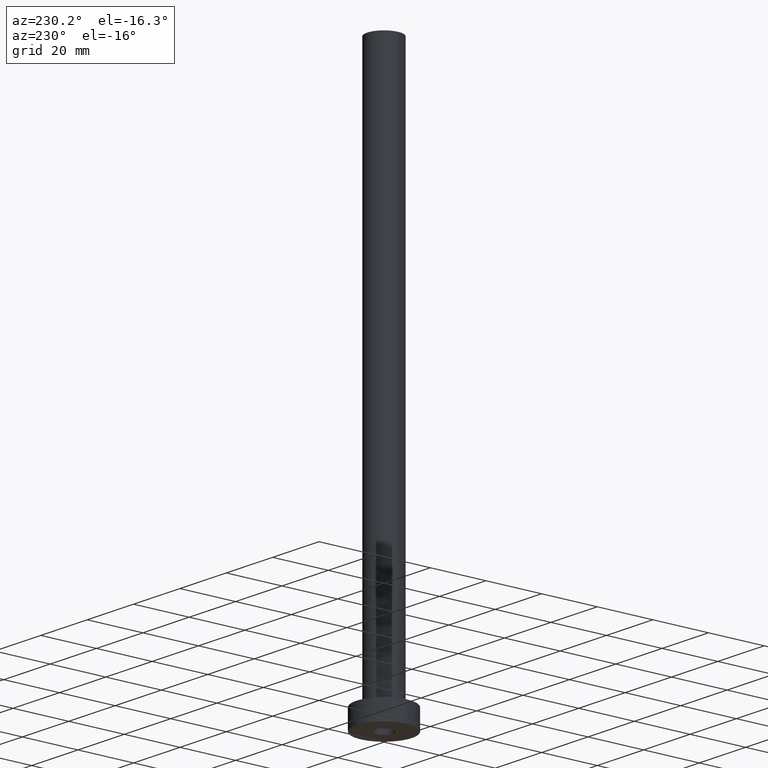
[diagram: clean part render]
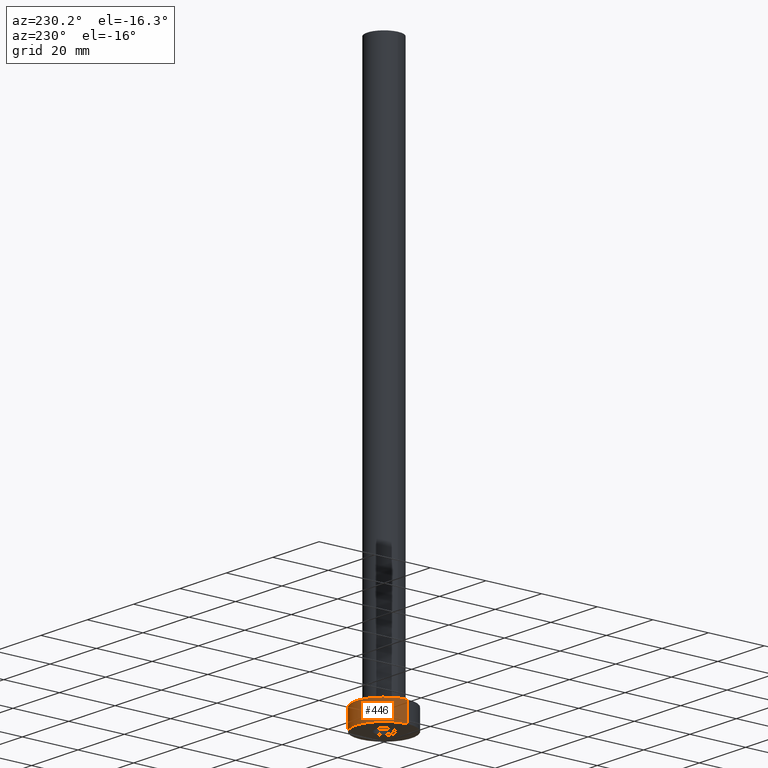
[diagram: same view with one face highlighted and labeled with its STEP entity id]
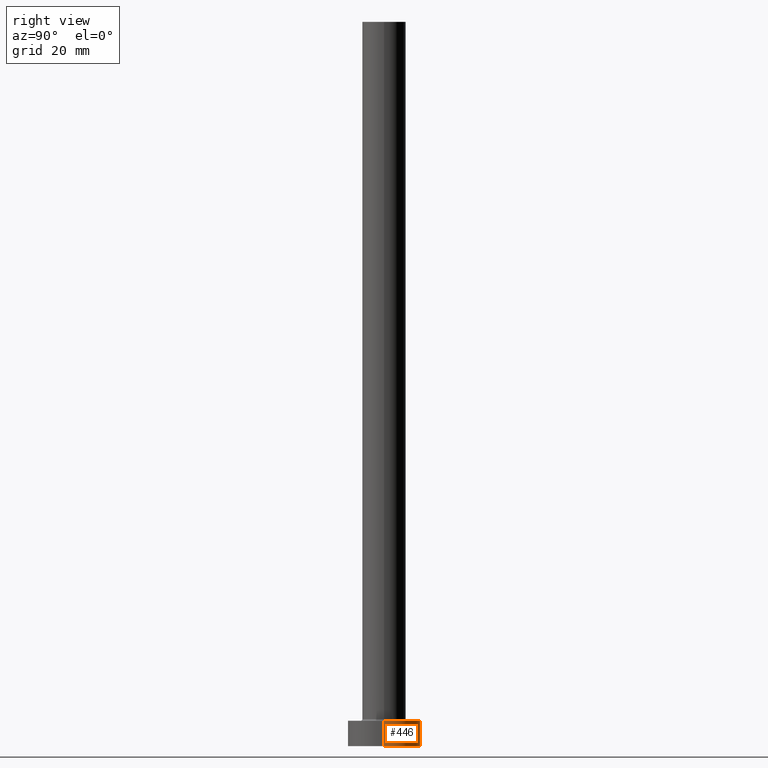
[diagram: same view with one face highlighted and labeled with its STEP entity id]
A machine part, auxiliary view. The second image highlights one B-rep face of the part: STEP entity #446.
A second angle (right view) of the same face is appended — the face is thin or edge-on in the first view.
In plain terms, the highlighted cylindrical surface (edge-blend (fillet) strip) has radius 10 mm, axis along (-0, -0, -1).
Its self-contained STEP definition (entity closure, byte-faithful):
#13 = VERTEX_POINT ( 'NONE', #458 ) ;
#17 = CARTESIAN_POINT ( 'NONE',  ( -10.00000000000000000, 0.000000000000000000, 7.000000000000000000 ) ) ;
#43 = CYLINDRICAL_SURFACE ( 'NONE', #389, 10.00000000000000000 ) ;
#50 = VECTOR ( 'NONE', #369, 1000.000000000000000 ) ;
#82 = DIRECTION ( 'NONE',  ( 1.000000000000000000, 0.000000000000000000, 0.000000000000000000 ) ) ;
#91 = VERTEX_POINT ( 'NONE', #17 ) ;
#97 = VERTEX_POINT ( 'NONE', #441 ) ;
#101 = CIRCLE ( 'NONE', #273, 10.00000000000000000 ) ;
#106 = DIRECTION ( 'NONE',  ( 0.000000000000000000, 0.000000000000000000, 1.000000000000000000 ) ) ;
#108 = FACE_OUTER_BOUND ( 'NONE', #298, .T. ) ;
#118 = CARTESIAN_POINT ( 'NONE',  ( 0.000000000000000000, 0.000000000000000000, 7.000000000000000000 ) ) ;
#120 = CARTESIAN_POINT ( 'NONE',  ( -10.00000000000000000, 0.000000000000000000, 0.000000000000000000 ) ) ;
#125 = ORIENTED_EDGE ( 'NONE', *, *, #311, .F. ) ;
#136 = LINE ( 'NONE', #165, #50 ) ;
#143 = EDGE_CURVE ( 'NONE', #13, #387, #461, .T. ) ;
#162 = ORIENTED_EDGE ( 'NONE', *, *, #201, .T. ) ;
#165 = CARTESIAN_POINT ( 'NONE',  ( 10.00000000000000000, 1.224646799147353256E-15, 7.000000000000000000 ) ) ;
#178 = CARTESIAN_POINT ( 'NONE',  ( 0.000000000000000000, 0.000000000000000000, 7.000000000000000000 ) ) ;
#201 = EDGE_CURVE ( 'NONE', #97, #13, #136, .T. ) ;
#214 = ORIENTED_EDGE ( 'NONE', *, *, #405, .F. ) ;
#245 = DIRECTION ( 'NONE',  ( -0.000000000000000000, -0.000000000000000000, -1.000000000000000000 ) ) ;
#251 = DIRECTION ( 'NONE',  ( 0.000000000000000000, 0.000000000000000000, 1.000000000000000000 ) ) ;
#270 = LINE ( 'NONE', #347, #427 ) ;
#273 = AXIS2_PLACEMENT_3D ( 'NONE', #118, #106, #385 ) ;
#298 = EDGE_LOOP ( 'NONE', ( #214, #162, #342, #125 ) ) ;
#311 = EDGE_CURVE ( 'NONE', #91, #387, #270, .T. ) ;
#342 = ORIENTED_EDGE ( 'NONE', *, *, #143, .T. ) ;
#344 = DIRECTION ( 'NONE',  ( -0.000000000000000000, -0.000000000000000000, -1.000000000000000000 ) ) ;
#347 = CARTESIAN_POINT ( 'NONE',  ( -10.00000000000000000, 0.000000000000000000, 7.000000000000000000 ) ) ;
#361 = DIRECTION ( 'NONE',  ( -1.000000000000000000, 0.000000000000000000, 0.000000000000000000 ) ) ;
#369 = DIRECTION ( 'NONE',  ( -0.000000000000000000, -0.000000000000000000, -1.000000000000000000 ) ) ;
#374 = AXIS2_PLACEMENT_3D ( 'NONE', #428, #251, #82 ) ;
#385 = DIRECTION ( 'NONE',  ( 1.000000000000000000, 0.000000000000000000, 0.000000000000000000 ) ) ;
#387 = VERTEX_POINT ( 'NONE', #120 ) ;
#389 = AXIS2_PLACEMENT_3D ( 'NONE', #178, #245, #361 ) ;
#405 = EDGE_CURVE ( 'NONE', #97, #91, #101, .T. ) ;
#427 = VECTOR ( 'NONE', #344, 1000.000000000000000 ) ;
#428 = CARTESIAN_POINT ( 'NONE',  ( 0.000000000000000000, 0.000000000000000000, 0.000000000000000000 ) ) ;
#441 = CARTESIAN_POINT ( 'NONE',  ( 10.00000000000000000, 1.224646799147353256E-15, 7.000000000000000000 ) ) ;
#446 = ADVANCED_FACE ( 'NONE', ( #108 ), #43, .T. ) ;
#458 = CARTESIAN_POINT ( 'NONE',  ( 10.00000000000000000, 1.224646799147353256E-15, 0.000000000000000000 ) ) ;
#461 = CIRCLE ( 'NONE', #374, 10.00000000000000000 ) ;